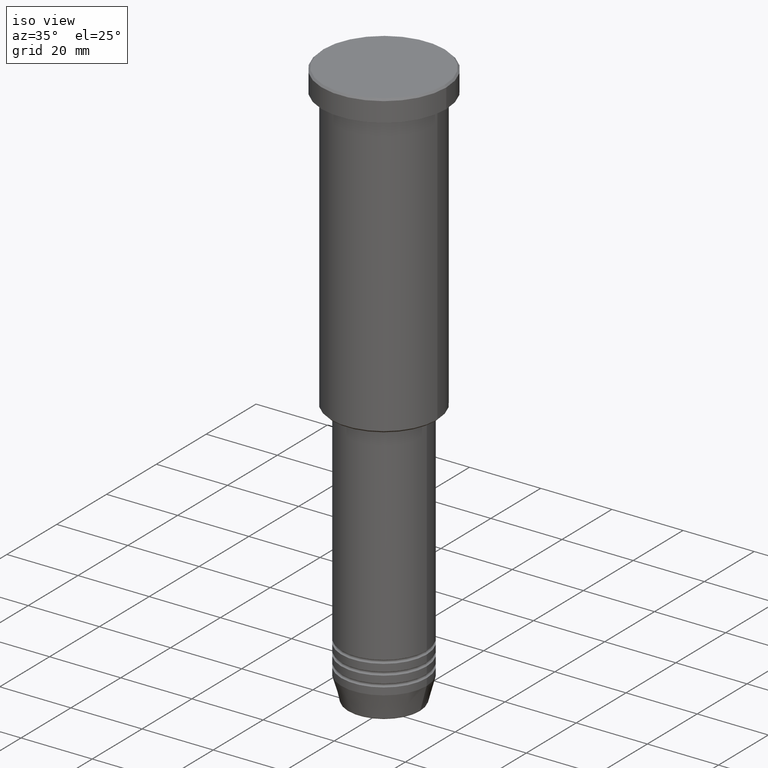
[diagram: clean part render]
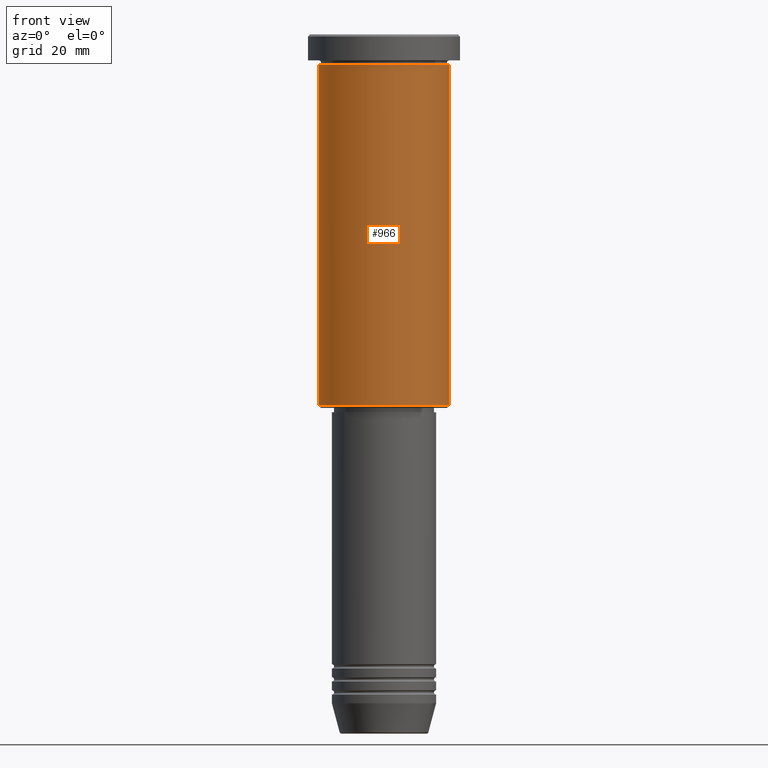
[diagram: tour spotlight — one face highlighted and labeled with its STEP entity id]
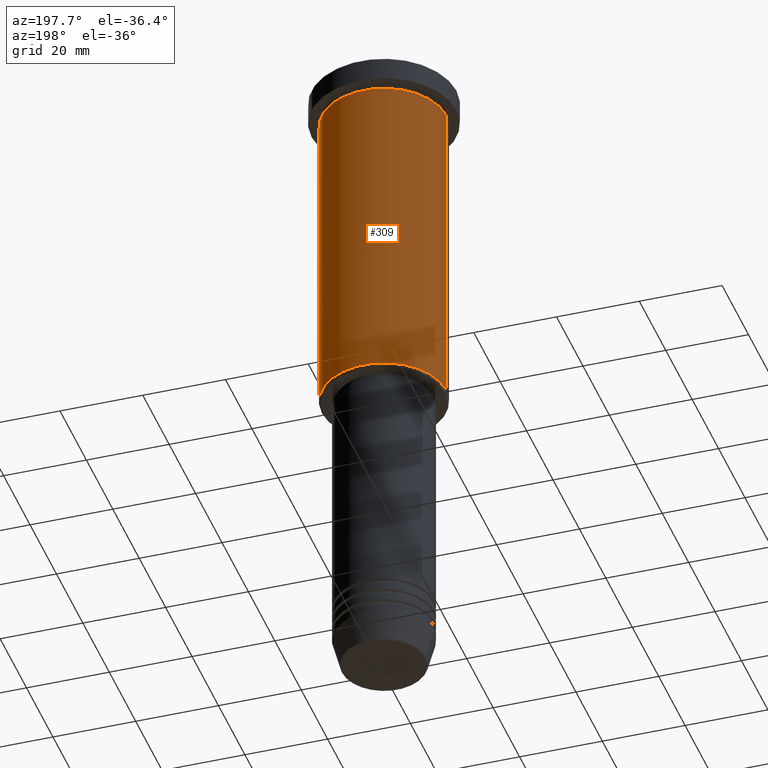
[diagram: tour spotlight — one face highlighted and labeled with its STEP entity id]
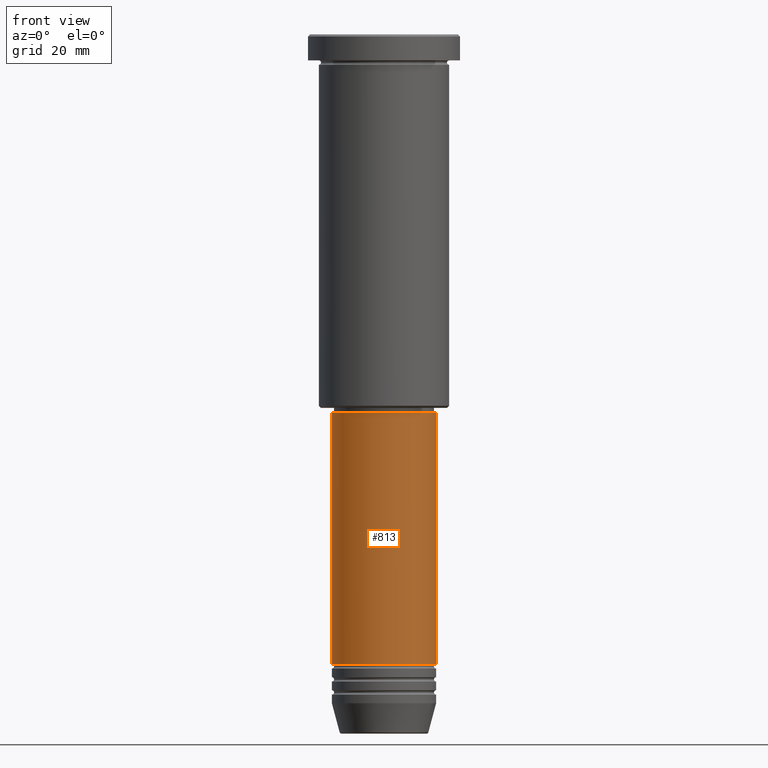
[diagram: tour spotlight — one face highlighted and labeled with its STEP entity id]
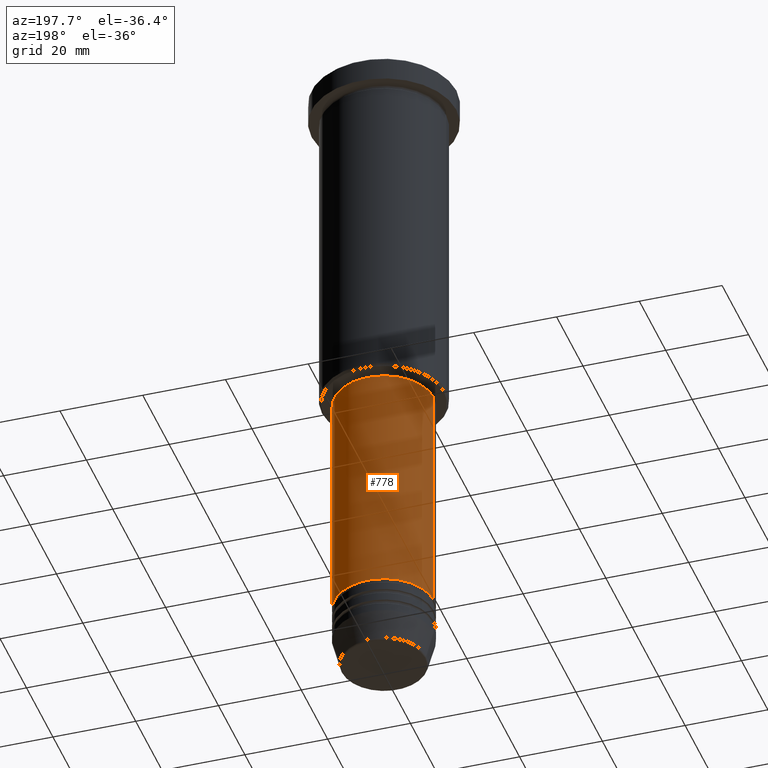
[diagram: tour spotlight — one face highlighted and labeled with its STEP entity id]
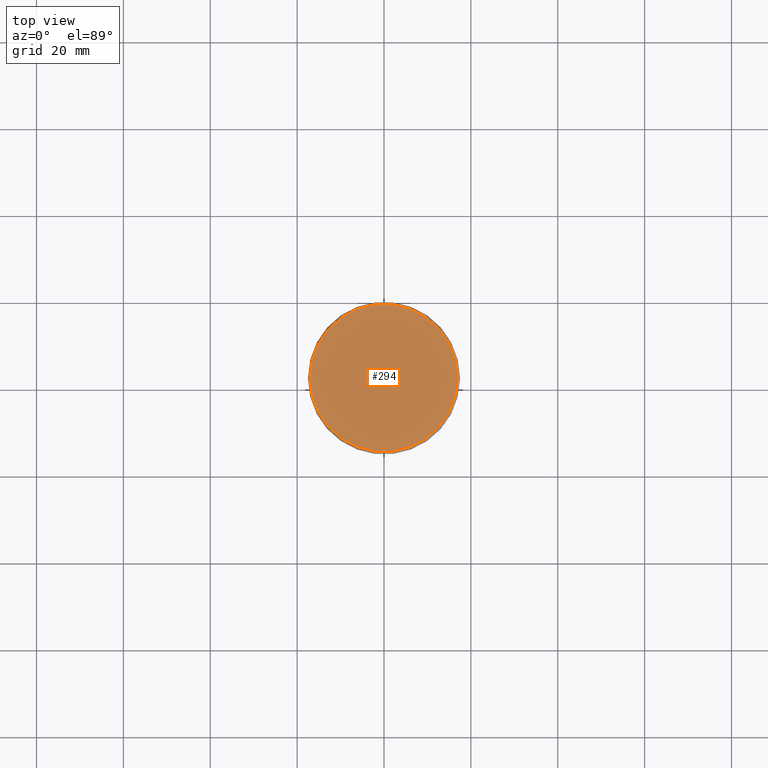
[diagram: tour spotlight — one face highlighted and labeled with its STEP entity id]
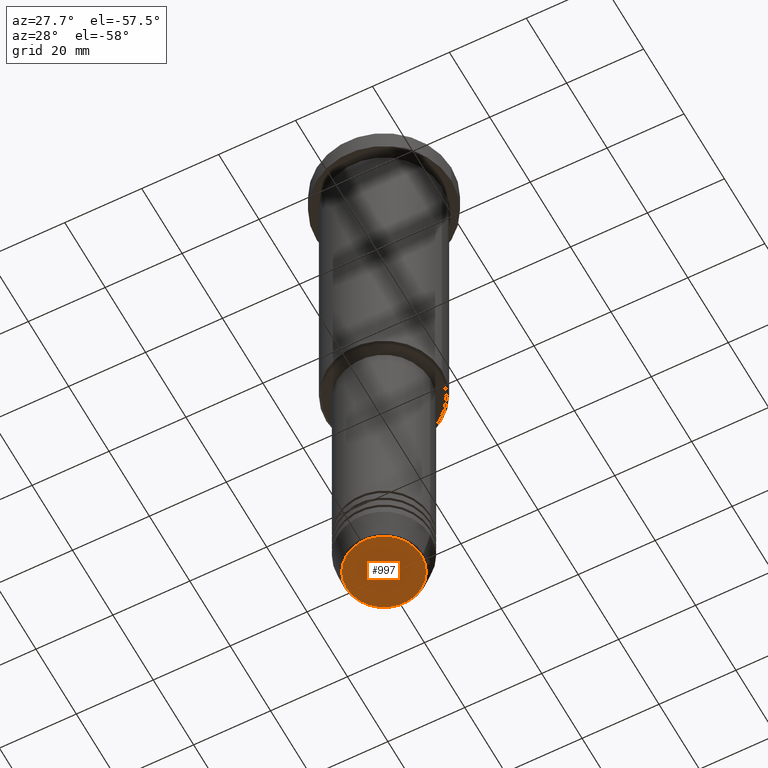
[diagram: tour spotlight — one face highlighted and labeled with its STEP entity id]
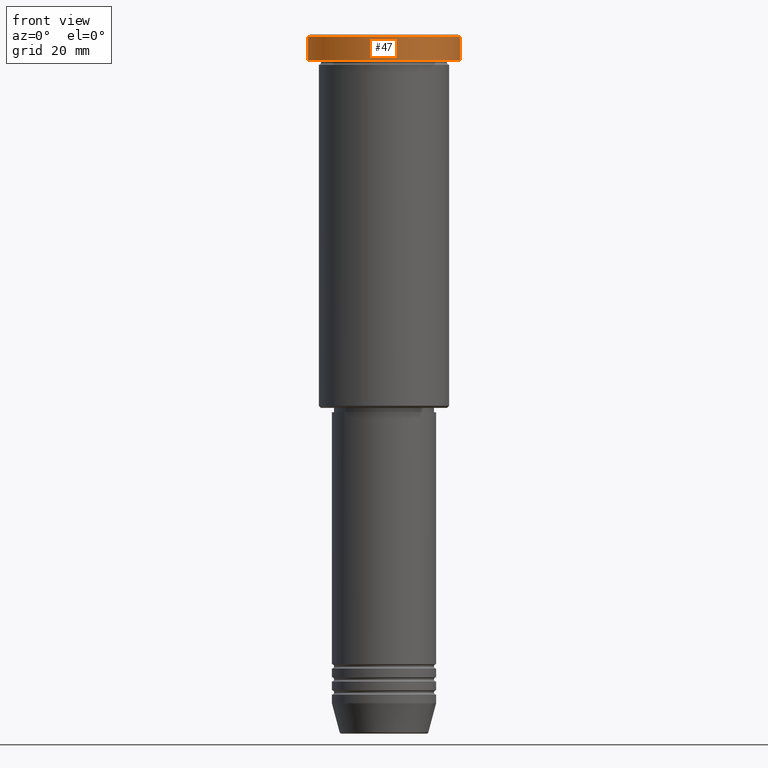
[diagram: tour spotlight — one face highlighted and labeled with its STEP entity id]
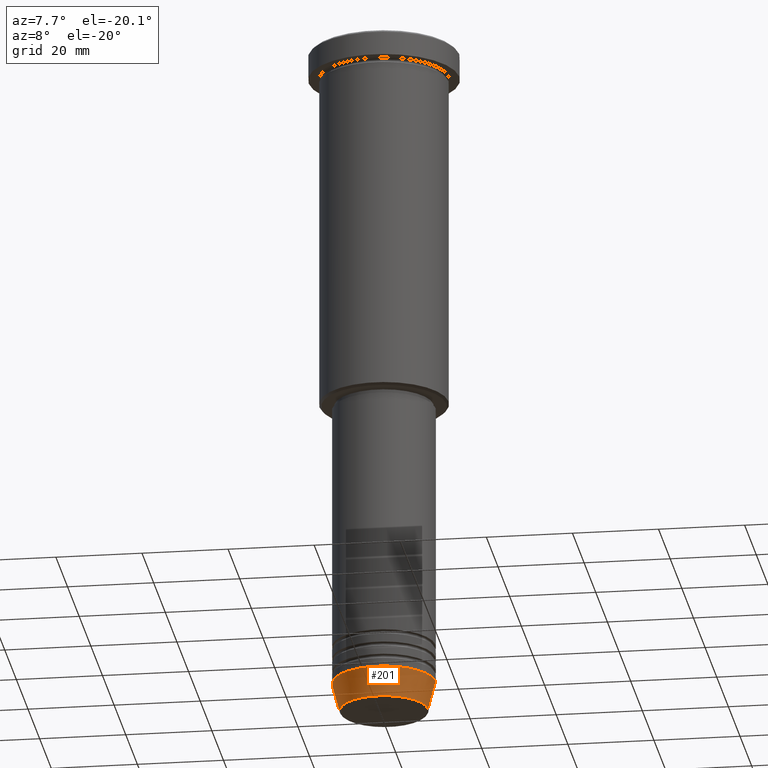
[diagram: tour spotlight — one face highlighted and labeled with its STEP entity id]
A machine part: a face-by-face anatomy tour. The part has 43 B-rep faces; the first image is the clean iso view, then the 8 largest visible faces are spotlighted one at a time (largest first), each with its STEP entity span.

Face 1 — front view, entity #966. In plain terms, the highlighted cylindrical surface (partial cylindrical patch) has radius 15 mm, axis along (-0, -0, 1).
Definition (entity closure, byte-faithful):
#3 = CIRCLE ( 'NONE', #447, 15.00000000000000000 ) ;
#21 = FACE_OUTER_BOUND ( 'NONE', #96, .T. ) ;
#22 = VERTEX_POINT ( 'NONE', #634 ) ;
#96 = EDGE_LOOP ( 'NONE', ( #480, #165, #759, #313 ) ) ;
#142 = DIRECTION ( 'NONE',  ( -0.000000000000000000, -0.000000000000000000, 1.000000000000000000 ) ) ;
#165 = ORIENTED_EDGE ( 'NONE', *, *, #596, .T. ) ;
#305 = DIRECTION ( 'NONE',  ( -0.000000000000000000, -0.000000000000000000, 1.000000000000000000 ) ) ;
#313 = ORIENTED_EDGE ( 'NONE', *, *, #555, .F. ) ;
#335 = CARTESIAN_POINT ( 'NONE',  ( -15.00000000000000000, 1.836970198721029589E-15, -85.49999999999998579 ) ) ;
#372 = DIRECTION ( 'NONE',  ( -0.000000000000000000, -0.000000000000000000, 1.000000000000000000 ) ) ;
#421 = LINE ( 'NONE', #1125, #1148 ) ;
#447 = AXIS2_PLACEMENT_3D ( 'NONE', #538, #458, #1161 ) ;
#458 = DIRECTION ( 'NONE',  ( -0.000000000000000000, -0.000000000000000000, 1.000000000000000000 ) ) ;
#463 = CARTESIAN_POINT ( 'NONE',  ( 15.00000000000000000, 0.000000000000000000, -85.49999999999998579 ) ) ;
#480 = ORIENTED_EDGE ( 'NONE', *, *, #1006, .F. ) ;
#515 = CARTESIAN_POINT ( 'NONE',  ( 0.000000000000000000, 0.000000000000000000, -85.49999999999998579 ) ) ;
#517 = EDGE_CURVE ( 'NONE', #804, #22, #1048, .T. ) ;
#538 = CARTESIAN_POINT ( 'NONE',  ( 0.000000000000000000, 0.000000000000000000, -6.999999999999995559 ) ) ;
#541 = VECTOR ( 'NONE', #372, 1000.000000000000000 ) ;
#542 = CARTESIAN_POINT ( 'NONE',  ( -15.00000000000000000, 1.836970198721029589E-15, -6.999999999999995559 ) ) ;
#555 = EDGE_CURVE ( 'NONE', #839, #22, #3, .T. ) ;
#596 = EDGE_CURVE ( 'NONE', #1097, #804, #1166, .T. ) ;
#634 = CARTESIAN_POINT ( 'NONE',  ( 15.00000000000000000, 0.000000000000000000, -6.999999999999995559 ) ) ;
#641 = CARTESIAN_POINT ( 'NONE',  ( 0.000000000000000000, 0.000000000000000000, 0.000000000000000000 ) ) ;
#759 = ORIENTED_EDGE ( 'NONE', *, *, #517, .T. ) ;
#804 = VERTEX_POINT ( 'NONE', #463 ) ;
#828 = CYLINDRICAL_SURFACE ( 'NONE', #1076, 15.00000000000000000 ) ;
#839 = VERTEX_POINT ( 'NONE', #542 ) ;
#847 = DIRECTION ( 'NONE',  ( 1.000000000000000000, 0.000000000000000000, 0.000000000000000000 ) ) ;
#911 = CARTESIAN_POINT ( 'NONE',  ( 15.00000000000000000, 0.000000000000000000, 0.000000000000000000 ) ) ;
#966 = ADVANCED_FACE ( 'NONE', ( #21 ), #828, .T. ) ;
#983 = AXIS2_PLACEMENT_3D ( 'NONE', #515, #1033, #1128 ) ;
#1006 = EDGE_CURVE ( 'NONE', #1097, #839, #421, .T. ) ;
#1033 = DIRECTION ( 'NONE',  ( -0.000000000000000000, -0.000000000000000000, 1.000000000000000000 ) ) ;
#1048 = LINE ( 'NONE', #911, #541 ) ;
#1076 = AXIS2_PLACEMENT_3D ( 'NONE', #641, #305, #847 ) ;
#1097 = VERTEX_POINT ( 'NONE', #335 ) ;
#1125 = CARTESIAN_POINT ( 'NONE',  ( -15.00000000000000000, 1.836970198721029589E-15, 0.000000000000000000 ) ) ;
#1128 = DIRECTION ( 'NONE',  ( -1.000000000000000000, 0.000000000000000000, 0.000000000000000000 ) ) ;
#1148 = VECTOR ( 'NONE', #142, 1000.000000000000000 ) ;
#1161 = DIRECTION ( 'NONE',  ( 1.000000000000000000, 0.000000000000000000, 0.000000000000000000 ) ) ;
#1166 = CIRCLE ( 'NONE', #983, 15.00000000000000000 ) ;

Face 2 — auxiliary view, entity #309. In plain terms, the highlighted cylindrical surface (partial cylindrical patch) has radius 15 mm, axis along (-0, -0, 1).
Definition (entity closure, byte-faithful):
#9 = ORIENTED_EDGE ( 'NONE', *, *, #416, .F. ) ;
#22 = VERTEX_POINT ( 'NONE', #634 ) ;
#142 = DIRECTION ( 'NONE',  ( -0.000000000000000000, -0.000000000000000000, 1.000000000000000000 ) ) ;
#172 = DIRECTION ( 'NONE',  ( -0.000000000000000000, -0.000000000000000000, 1.000000000000000000 ) ) ;
#309 = ADVANCED_FACE ( 'NONE', ( #1075 ), #624, .T. ) ;
#335 = CARTESIAN_POINT ( 'NONE',  ( -15.00000000000000000, 1.836970198721029589E-15, -85.49999999999998579 ) ) ;
#354 = CARTESIAN_POINT ( 'NONE',  ( 0.000000000000000000, 0.000000000000000000, 0.000000000000000000 ) ) ;
#372 = DIRECTION ( 'NONE',  ( -0.000000000000000000, -0.000000000000000000, 1.000000000000000000 ) ) ;
#373 = DIRECTION ( 'NONE',  ( 1.000000000000000000, 0.000000000000000000, 0.000000000000000000 ) ) ;
#416 = EDGE_CURVE ( 'NONE', #22, #839, #559, .T. ) ;
#421 = LINE ( 'NONE', #1125, #1148 ) ;
#433 = EDGE_CURVE ( 'NONE', #804, #1097, #871, .T. ) ;
#450 = ORIENTED_EDGE ( 'NONE', *, *, #517, .F. ) ;
#463 = CARTESIAN_POINT ( 'NONE',  ( 15.00000000000000000, 0.000000000000000000, -85.49999999999998579 ) ) ;
#495 = ORIENTED_EDGE ( 'NONE', *, *, #433, .T. ) ;
#517 = EDGE_CURVE ( 'NONE', #804, #22, #1048, .T. ) ;
#519 = DIRECTION ( 'NONE',  ( -0.000000000000000000, -0.000000000000000000, 1.000000000000000000 ) ) ;
#541 = VECTOR ( 'NONE', #372, 1000.000000000000000 ) ;
#542 = CARTESIAN_POINT ( 'NONE',  ( -15.00000000000000000, 1.836970198721029589E-15, -6.999999999999995559 ) ) ;
#556 = ORIENTED_EDGE ( 'NONE', *, *, #1006, .T. ) ;
#559 = CIRCLE ( 'NONE', #1017, 15.00000000000000000 ) ;
#624 = CYLINDRICAL_SURFACE ( 'NONE', #1089, 15.00000000000000000 ) ;
#634 = CARTESIAN_POINT ( 'NONE',  ( 15.00000000000000000, 0.000000000000000000, -6.999999999999995559 ) ) ;
#798 = AXIS2_PLACEMENT_3D ( 'NONE', #1105, #172, #1007 ) ;
#804 = VERTEX_POINT ( 'NONE', #463 ) ;
#839 = VERTEX_POINT ( 'NONE', #542 ) ;
#871 = CIRCLE ( 'NONE', #798, 15.00000000000000000 ) ;
#911 = CARTESIAN_POINT ( 'NONE',  ( 15.00000000000000000, 0.000000000000000000, 0.000000000000000000 ) ) ;
#1006 = EDGE_CURVE ( 'NONE', #1097, #839, #421, .T. ) ;
#1007 = DIRECTION ( 'NONE',  ( -1.000000000000000000, 0.000000000000000000, 0.000000000000000000 ) ) ;
#1017 = AXIS2_PLACEMENT_3D ( 'NONE', #1134, #519, #1042 ) ;
#1038 = EDGE_LOOP ( 'NONE', ( #495, #556, #9, #450 ) ) ;
#1042 = DIRECTION ( 'NONE',  ( 1.000000000000000000, 0.000000000000000000, 0.000000000000000000 ) ) ;
#1048 = LINE ( 'NONE', #911, #541 ) ;
#1075 = FACE_OUTER_BOUND ( 'NONE', #1038, .T. ) ;
#1089 = AXIS2_PLACEMENT_3D ( 'NONE', #354, #1168, #373 ) ;
#1097 = VERTEX_POINT ( 'NONE', #335 ) ;
#1105 = CARTESIAN_POINT ( 'NONE',  ( 0.000000000000000000, 0.000000000000000000, -85.49999999999998579 ) ) ;
#1125 = CARTESIAN_POINT ( 'NONE',  ( -15.00000000000000000, 1.836970198721029589E-15, 0.000000000000000000 ) ) ;
#1134 = CARTESIAN_POINT ( 'NONE',  ( 0.000000000000000000, 0.000000000000000000, -6.999999999999995559 ) ) ;
#1148 = VECTOR ( 'NONE', #142, 1000.000000000000000 ) ;
#1168 = DIRECTION ( 'NONE',  ( -0.000000000000000000, -0.000000000000000000, 1.000000000000000000 ) ) ;

Face 3 — front view, entity #813. In plain terms, the highlighted cylindrical surface (partial cylindrical patch) has radius 12 mm, axis along (-0, -0, 1).
Definition (entity closure, byte-faithful):
#28 = AXIS2_PLACEMENT_3D ( 'NONE', #101, #937, #756 ) ;
#41 = EDGE_LOOP ( 'NONE', ( #972, #474, #882, #456 ) ) ;
#86 = DIRECTION ( 'NONE',  ( -0.000000000000000000, -0.000000000000000000, 1.000000000000000000 ) ) ;
#90 = CIRCLE ( 'NONE', #1071, 12.00000000000000000 ) ;
#101 = CARTESIAN_POINT ( 'NONE',  ( 0.000000000000000000, 0.000000000000000000, -144.9999999999999716 ) ) ;
#222 = DIRECTION ( 'NONE',  ( 1.000000000000000000, 0.000000000000000000, 0.000000000000000000 ) ) ;
#271 = CARTESIAN_POINT ( 'NONE',  ( 0.000000000000000000, 0.000000000000000000, 0.000000000000000000 ) ) ;
#332 = VERTEX_POINT ( 'NONE', #1080 ) ;
#379 = EDGE_CURVE ( 'NONE', #332, #946, #889, .T. ) ;
#390 = CARTESIAN_POINT ( 'NONE',  ( -12.00000000000000000, 1.469576158976823947E-15, -87.00000000000000000 ) ) ;
#412 = CARTESIAN_POINT ( 'NONE',  ( 0.000000000000000000, 0.000000000000000000, -87.00000000000000000 ) ) ;
#456 = ORIENTED_EDGE ( 'NONE', *, *, #486, .F. ) ;
#474 = ORIENTED_EDGE ( 'NONE', *, *, #379, .T. ) ;
#486 = EDGE_CURVE ( 'NONE', #940, #1159, #90, .T. ) ;
#536 = LINE ( 'NONE', #976, #1113 ) ;
#557 = CARTESIAN_POINT ( 'NONE',  ( 12.00000000000000000, 0.000000000000000000, 0.000000000000000000 ) ) ;
#606 = DIRECTION ( 'NONE',  ( -0.000000000000000000, -0.000000000000000000, 1.000000000000000000 ) ) ;
#654 = DIRECTION ( 'NONE',  ( -0.000000000000000000, -0.000000000000000000, 1.000000000000000000 ) ) ;
#735 = CARTESIAN_POINT ( 'NONE',  ( 12.00000000000000000, 0.000000000000000000, -144.9999999999999716 ) ) ;
#756 = DIRECTION ( 'NONE',  ( 1.000000000000000000, 0.000000000000000000, 0.000000000000000000 ) ) ;
#757 = LINE ( 'NONE', #557, #1131 ) ;
#761 = AXIS2_PLACEMENT_3D ( 'NONE', #271, #86, #1172 ) ;
#793 = CARTESIAN_POINT ( 'NONE',  ( 12.00000000000000000, 0.000000000000000000, -87.00000000000000000 ) ) ;
#795 = DIRECTION ( 'NONE',  ( -0.000000000000000000, -0.000000000000000000, 1.000000000000000000 ) ) ;
#808 = EDGE_CURVE ( 'NONE', #332, #940, #536, .T. ) ;
#813 = ADVANCED_FACE ( 'NONE', ( #1064 ), #905, .T. ) ;
#863 = EDGE_CURVE ( 'NONE', #946, #1159, #757, .T. ) ;
#882 = ORIENTED_EDGE ( 'NONE', *, *, #863, .T. ) ;
#889 = CIRCLE ( 'NONE', #28, 12.00000000000000000 ) ;
#905 = CYLINDRICAL_SURFACE ( 'NONE', #761, 12.00000000000000000 ) ;
#937 = DIRECTION ( 'NONE',  ( -0.000000000000000000, -0.000000000000000000, 1.000000000000000000 ) ) ;
#940 = VERTEX_POINT ( 'NONE', #390 ) ;
#946 = VERTEX_POINT ( 'NONE', #735 ) ;
#972 = ORIENTED_EDGE ( 'NONE', *, *, #808, .F. ) ;
#976 = CARTESIAN_POINT ( 'NONE',  ( -12.00000000000000000, 1.469576158976823947E-15, 0.000000000000000000 ) ) ;
#1064 = FACE_OUTER_BOUND ( 'NONE', #41, .T. ) ;
#1071 = AXIS2_PLACEMENT_3D ( 'NONE', #412, #606, #222 ) ;
#1080 = CARTESIAN_POINT ( 'NONE',  ( -12.00000000000000000, 1.469576158976823947E-15, -144.9999999999999716 ) ) ;
#1113 = VECTOR ( 'NONE', #795, 1000.000000000000000 ) ;
#1131 = VECTOR ( 'NONE', #654, 1000.000000000000000 ) ;
#1159 = VERTEX_POINT ( 'NONE', #793 ) ;
#1172 = DIRECTION ( 'NONE',  ( 1.000000000000000000, 0.000000000000000000, 0.000000000000000000 ) ) ;

Face 4 — auxiliary view, entity #778. In plain terms, the highlighted cylindrical surface (partial cylindrical patch) has radius 12 mm, axis along (-0, -0, 1).
Definition (entity closure, byte-faithful):
#56 = EDGE_CURVE ( 'NONE', #946, #332, #518, .T. ) ;
#70 = DIRECTION ( 'NONE',  ( 1.000000000000000000, 0.000000000000000000, 0.000000000000000000 ) ) ;
#150 = FACE_OUTER_BOUND ( 'NONE', #420, .T. ) ;
#164 = AXIS2_PLACEMENT_3D ( 'NONE', #188, #482, #838 ) ;
#188 = CARTESIAN_POINT ( 'NONE',  ( 0.000000000000000000, 0.000000000000000000, -144.9999999999999716 ) ) ;
#252 = DIRECTION ( 'NONE',  ( -0.000000000000000000, -0.000000000000000000, 1.000000000000000000 ) ) ;
#332 = VERTEX_POINT ( 'NONE', #1080 ) ;
#378 = CARTESIAN_POINT ( 'NONE',  ( 0.000000000000000000, 0.000000000000000000, -87.00000000000000000 ) ) ;
#390 = CARTESIAN_POINT ( 'NONE',  ( -12.00000000000000000, 1.469576158976823947E-15, -87.00000000000000000 ) ) ;
#420 = EDGE_LOOP ( 'NONE', ( #589, #960, #924, #487 ) ) ;
#451 = AXIS2_PLACEMENT_3D ( 'NONE', #812, #252, #70 ) ;
#460 = CYLINDRICAL_SURFACE ( 'NONE', #451, 12.00000000000000000 ) ;
#465 = CIRCLE ( 'NONE', #1111, 12.00000000000000000 ) ;
#478 = EDGE_CURVE ( 'NONE', #1159, #940, #465, .T. ) ;
#482 = DIRECTION ( 'NONE',  ( -0.000000000000000000, -0.000000000000000000, 1.000000000000000000 ) ) ;
#487 = ORIENTED_EDGE ( 'NONE', *, *, #863, .F. ) ;
#518 = CIRCLE ( 'NONE', #164, 12.00000000000000000 ) ;
#536 = LINE ( 'NONE', #976, #1113 ) ;
#557 = CARTESIAN_POINT ( 'NONE',  ( 12.00000000000000000, 0.000000000000000000, 0.000000000000000000 ) ) ;
#589 = ORIENTED_EDGE ( 'NONE', *, *, #56, .T. ) ;
#652 = DIRECTION ( 'NONE',  ( 1.000000000000000000, 0.000000000000000000, 0.000000000000000000 ) ) ;
#654 = DIRECTION ( 'NONE',  ( -0.000000000000000000, -0.000000000000000000, 1.000000000000000000 ) ) ;
#735 = CARTESIAN_POINT ( 'NONE',  ( 12.00000000000000000, 0.000000000000000000, -144.9999999999999716 ) ) ;
#757 = LINE ( 'NONE', #557, #1131 ) ;
#778 = ADVANCED_FACE ( 'NONE', ( #150 ), #460, .T. ) ;
#793 = CARTESIAN_POINT ( 'NONE',  ( 12.00000000000000000, 0.000000000000000000, -87.00000000000000000 ) ) ;
#795 = DIRECTION ( 'NONE',  ( -0.000000000000000000, -0.000000000000000000, 1.000000000000000000 ) ) ;
#808 = EDGE_CURVE ( 'NONE', #332, #940, #536, .T. ) ;
#812 = CARTESIAN_POINT ( 'NONE',  ( 0.000000000000000000, 0.000000000000000000, 0.000000000000000000 ) ) ;
#825 = DIRECTION ( 'NONE',  ( -0.000000000000000000, -0.000000000000000000, 1.000000000000000000 ) ) ;
#838 = DIRECTION ( 'NONE',  ( 1.000000000000000000, 0.000000000000000000, 0.000000000000000000 ) ) ;
#863 = EDGE_CURVE ( 'NONE', #946, #1159, #757, .T. ) ;
#924 = ORIENTED_EDGE ( 'NONE', *, *, #478, .F. ) ;
#940 = VERTEX_POINT ( 'NONE', #390 ) ;
#946 = VERTEX_POINT ( 'NONE', #735 ) ;
#960 = ORIENTED_EDGE ( 'NONE', *, *, #808, .T. ) ;
#976 = CARTESIAN_POINT ( 'NONE',  ( -12.00000000000000000, 1.469576158976823947E-15, 0.000000000000000000 ) ) ;
#1080 = CARTESIAN_POINT ( 'NONE',  ( -12.00000000000000000, 1.469576158976823947E-15, -144.9999999999999716 ) ) ;
#1111 = AXIS2_PLACEMENT_3D ( 'NONE', #378, #825, #652 ) ;
#1113 = VECTOR ( 'NONE', #795, 1000.000000000000000 ) ;
#1131 = VECTOR ( 'NONE', #654, 1000.000000000000000 ) ;
#1159 = VERTEX_POINT ( 'NONE', #793 ) ;

Face 5 — top view, entity #294. In plain terms, the highlighted planar face has unit normal (0, -0, 1).
Definition (entity closure, byte-faithful):
#4 = CARTESIAN_POINT ( 'NONE',  ( 17.00000000000004263, 2.112515728529187222E-15, 0.000000000000000000 ) ) ;
#5 = CARTESIAN_POINT ( 'NONE',  ( 0.000000000000000000, 0.000000000000000000, 0.000000000000000000 ) ) ;
#81 = DIRECTION ( 'NONE',  ( 0.000000000000000000, -0.000000000000000000, 1.000000000000000000 ) ) ;
#110 = AXIS2_PLACEMENT_3D ( 'NONE', #5, #996, #484 ) ;
#126 = AXIS2_PLACEMENT_3D ( 'NONE', #722, #81, #814 ) ;
#131 = VERTEX_POINT ( 'NONE', #245 ) ;
#156 = VERTEX_POINT ( 'NONE', #4 ) ;
#169 = AXIS2_PLACEMENT_3D ( 'NONE', #661, #291, #491 ) ;
#171 = FACE_OUTER_BOUND ( 'NONE', #350, .T. ) ;
#245 = CARTESIAN_POINT ( 'NONE',  ( -17.00000000000004263, 0.000000000000000000, 0.000000000000000000 ) ) ;
#291 = DIRECTION ( 'NONE',  ( -0.000000000000000000, -0.000000000000000000, 1.000000000000000000 ) ) ;
#294 = ADVANCED_FACE ( 'NONE', ( #171 ), #978, .T. ) ;
#350 = EDGE_LOOP ( 'NONE', ( #702, #466 ) ) ;
#351 = CIRCLE ( 'NONE', #169, 17.00000000000004263 ) ;
#466 = ORIENTED_EDGE ( 'NONE', *, *, #935, .T. ) ;
#484 = DIRECTION ( 'NONE',  ( 1.000000000000000000, 0.000000000000000000, 0.000000000000000000 ) ) ;
#491 = DIRECTION ( 'NONE',  ( 1.000000000000000000, 0.000000000000000000, 0.000000000000000000 ) ) ;
#503 = CIRCLE ( 'NONE', #110, 17.00000000000004263 ) ;
#661 = CARTESIAN_POINT ( 'NONE',  ( 0.000000000000000000, 0.000000000000000000, 0.000000000000000000 ) ) ;
#702 = ORIENTED_EDGE ( 'NONE', *, *, #922, .T. ) ;
#722 = CARTESIAN_POINT ( 'NONE',  ( 0.000000000000000000, 0.000000000000000000, 0.000000000000000000 ) ) ;
#814 = DIRECTION ( 'NONE',  ( 1.000000000000000000, 0.000000000000000000, 0.000000000000000000 ) ) ;
#922 = EDGE_CURVE ( 'NONE', #131, #156, #351, .T. ) ;
#935 = EDGE_CURVE ( 'NONE', #156, #131, #503, .T. ) ;
#978 = PLANE ( 'NONE',  #126 ) ;
#996 = DIRECTION ( 'NONE',  ( -0.000000000000000000, -0.000000000000000000, 1.000000000000000000 ) ) ;

Face 6 — auxiliary view, entity #997. In plain terms, the highlighted planar face has unit normal (0, -0, 1).
Definition (entity closure, byte-faithful):
#38 = DIRECTION ( 'NONE',  ( 0.000000000000000000, 0.000000000000000000, -1.000000000000000000 ) ) ;
#44 = DIRECTION ( 'NONE',  ( 1.000000000000000000, 0.000000000000000000, 0.000000000000000000 ) ) ;
#67 = DIRECTION ( 'NONE',  ( 1.000000000000000000, 0.000000000000000000, 0.000000000000000000 ) ) ;
#92 = AXIS2_PLACEMENT_3D ( 'NONE', #1115, #38, #952 ) ;
#239 = CARTESIAN_POINT ( 'NONE',  ( 0.000000000000000000, 0.000000000000000000, -160.9999999999999716 ) ) ;
#311 = CIRCLE ( 'NONE', #92, 9.740692158992667160 ) ;
#327 = AXIS2_PLACEMENT_3D ( 'NONE', #239, #774, #44 ) ;
#357 = CARTESIAN_POINT ( 'NONE',  ( 0.000000000000000000, 0.000000000000000000, -160.9999999999999716 ) ) ;
#415 = PLANE ( 'NONE',  #327 ) ;
#496 = CARTESIAN_POINT ( 'NONE',  ( 9.740692158992667160, 0.000000000000000000, -160.9999999999999716 ) ) ;
#505 = CARTESIAN_POINT ( 'NONE',  ( -9.740692158992667160, 1.222463696683475393E-15, -160.9999999999999716 ) ) ;
#525 = ORIENTED_EDGE ( 'NONE', *, *, #1132, .T. ) ;
#565 = AXIS2_PLACEMENT_3D ( 'NONE', #357, #1062, #67 ) ;
#683 = VERTEX_POINT ( 'NONE', #505 ) ;
#774 = DIRECTION ( 'NONE',  ( 0.000000000000000000, -0.000000000000000000, 1.000000000000000000 ) ) ;
#933 = CIRCLE ( 'NONE', #565, 9.740692158992667160 ) ;
#952 = DIRECTION ( 'NONE',  ( 1.000000000000000000, 0.000000000000000000, 0.000000000000000000 ) ) ;
#997 = ADVANCED_FACE ( 'NONE', ( #1110 ), #415, .F. ) ;
#1012 = EDGE_CURVE ( 'NONE', #1018, #683, #311, .T. ) ;
#1018 = VERTEX_POINT ( 'NONE', #496 ) ;
#1062 = DIRECTION ( 'NONE',  ( 0.000000000000000000, 0.000000000000000000, -1.000000000000000000 ) ) ;
#1101 = ORIENTED_EDGE ( 'NONE', *, *, #1012, .T. ) ;
#1110 = FACE_OUTER_BOUND ( 'NONE', #1151, .T. ) ;
#1115 = CARTESIAN_POINT ( 'NONE',  ( 0.000000000000000000, 0.000000000000000000, -160.9999999999999716 ) ) ;
#1132 = EDGE_CURVE ( 'NONE', #683, #1018, #933, .T. ) ;
#1151 = EDGE_LOOP ( 'NONE', ( #1101, #525 ) ) ;

Face 7 — front view, entity #47. In plain terms, the highlighted cylindrical surface (partial cylindrical patch) has radius 17.5 mm, axis along (-0, -0, 1).
Definition (entity closure, byte-faithful):
#2 = AXIS2_PLACEMENT_3D ( 'NONE', #279, #10, #644 ) ;
#10 = DIRECTION ( 'NONE',  ( -0.000000000000000000, -0.000000000000000000, 1.000000000000000000 ) ) ;
#12 = LINE ( 'NONE', #193, #287 ) ;
#47 = ADVANCED_FACE ( 'NONE', ( #377 ), #901, .T. ) ;
#79 = VERTEX_POINT ( 'NONE', #398 ) ;
#106 = CIRCLE ( 'NONE', #777, 17.50000000000000000 ) ;
#111 = EDGE_CURVE ( 'NONE', #1065, #79, #106, .T. ) ;
#147 = CIRCLE ( 'NONE', #780, 17.50000000000000000 ) ;
#162 = DIRECTION ( 'NONE',  ( 0.000000000000000000, 0.000000000000000000, -1.000000000000000000 ) ) ;
#191 = CARTESIAN_POINT ( 'NONE',  ( 17.50000000000000000, 0.000000000000000000, -5.999999999999995559 ) ) ;
#193 = CARTESIAN_POINT ( 'NONE',  ( 17.50000000000000000, 0.000000000000000000, 0.000000000000000000 ) ) ;
#234 = CARTESIAN_POINT ( 'NONE',  ( -17.50000000000000000, 2.143131898507868248E-15, 0.000000000000000000 ) ) ;
#257 = DIRECTION ( 'NONE',  ( 1.000000000000000000, 0.000000000000000000, 0.000000000000000000 ) ) ;
#266 = ORIENTED_EDGE ( 'NONE', *, *, #111, .T. ) ;
#279 = CARTESIAN_POINT ( 'NONE',  ( 0.000000000000000000, 0.000000000000000000, 0.000000000000000000 ) ) ;
#284 = EDGE_CURVE ( 'NONE', #492, #79, #898, .T. ) ;
#287 = VECTOR ( 'NONE', #302, 1000.000000000000000 ) ;
#299 = CARTESIAN_POINT ( 'NONE',  ( 0.000000000000000000, 0.000000000000000000, -5.999999999999995559 ) ) ;
#302 = DIRECTION ( 'NONE',  ( -0.000000000000000000, -0.000000000000000000, 1.000000000000000000 ) ) ;
#377 = FACE_OUTER_BOUND ( 'NONE', #981, .T. ) ;
#398 = CARTESIAN_POINT ( 'NONE',  ( -17.50000000000000000, 2.143131898507868248E-15, -0.4999999999999725775 ) ) ;
#475 = EDGE_CURVE ( 'NONE', #948, #1065, #12, .T. ) ;
#492 = VERTEX_POINT ( 'NONE', #961 ) ;
#602 = CARTESIAN_POINT ( 'NONE',  ( 17.50000000000000000, 0.000000000000000000, -0.4999999999999725775 ) ) ;
#644 = DIRECTION ( 'NONE',  ( 1.000000000000000000, 0.000000000000000000, 0.000000000000000000 ) ) ;
#647 = VECTOR ( 'NONE', #715, 1000.000000000000000 ) ;
#715 = DIRECTION ( 'NONE',  ( -0.000000000000000000, -0.000000000000000000, 1.000000000000000000 ) ) ;
#777 = AXIS2_PLACEMENT_3D ( 'NONE', #790, #162, #257 ) ;
#780 = AXIS2_PLACEMENT_3D ( 'NONE', #299, #842, #1106 ) ;
#790 = CARTESIAN_POINT ( 'NONE',  ( 0.000000000000000000, 0.000000000000000000, -0.4999999999999725775 ) ) ;
#842 = DIRECTION ( 'NONE',  ( -0.000000000000000000, -0.000000000000000000, 1.000000000000000000 ) ) ;
#850 = ORIENTED_EDGE ( 'NONE', *, *, #475, .T. ) ;
#898 = LINE ( 'NONE', #234, #647 ) ;
#901 = CYLINDRICAL_SURFACE ( 'NONE', #2, 17.50000000000000000 ) ;
#948 = VERTEX_POINT ( 'NONE', #191 ) ;
#956 = EDGE_CURVE ( 'NONE', #492, #948, #147, .T. ) ;
#961 = CARTESIAN_POINT ( 'NONE',  ( -17.50000000000000000, 2.143131898507868248E-15, -5.999999999999995559 ) ) ;
#981 = EDGE_LOOP ( 'NONE', ( #998, #1164, #850, #266 ) ) ;
#998 = ORIENTED_EDGE ( 'NONE', *, *, #284, .F. ) ;
#1065 = VERTEX_POINT ( 'NONE', #602 ) ;
#1106 = DIRECTION ( 'NONE',  ( 1.000000000000000000, 0.000000000000000000, 0.000000000000000000 ) ) ;
#1164 = ORIENTED_EDGE ( 'NONE', *, *, #956, .T. ) ;

Face 8 — auxiliary view, entity #201. In plain terms, the highlighted conical surface has half-angle 15 deg.
Definition (entity closure, byte-faithful):
#11 = ORIENTED_EDGE ( 'NONE', *, *, #827, .T. ) ;
#53 = CARTESIAN_POINT ( 'NONE',  ( -12.00000000000000000, 1.469576158976823947E-15, -154.0000000000000000 ) ) ;
#74 = VECTOR ( 'NONE', #1013, 1000.000000000000000 ) ;
#77 = EDGE_CURVE ( 'NONE', #705, #1041, #678, .T. ) ;
#83 = CARTESIAN_POINT ( 'NONE',  ( -10.22365507213719837, 1.360806402472383336E-15, -160.6294095225512422 ) ) ;
#148 = DIRECTION ( 'NONE',  ( -0.000000000000000000, -0.000000000000000000, 1.000000000000000000 ) ) ;
#201 = ADVANCED_FACE ( 'NONE', ( #1067 ), #346, .T. ) ;
#207 = CIRCLE ( 'NONE', #464, 12.00000000000000000 ) ;
#249 = EDGE_CURVE ( 'NONE', #676, #1041, #207, .T. ) ;
#250 = AXIS2_PLACEMENT_3D ( 'NONE', #374, #734, #803 ) ;
#260 = CARTESIAN_POINT ( 'NONE',  ( 0.000000000000000000, 0.000000000000000000, -154.0000000000000000 ) ) ;
#343 = VERTEX_POINT ( 'NONE', #83 ) ;
#346 = CONICAL_SURFACE ( 'NONE', #999, 12.00000000000000000, 0.2617993877991500740 ) ;
#365 = ORIENTED_EDGE ( 'NONE', *, *, #930, .F. ) ;
#374 = CARTESIAN_POINT ( 'NONE',  ( 0.000000000000000000, 0.000000000000000000, -160.6294095225512422 ) ) ;
#380 = CARTESIAN_POINT ( 'NONE',  ( -12.00000000000000000, 1.469576158976823947E-15, -154.0000000000000000 ) ) ;
#436 = CARTESIAN_POINT ( 'NONE',  ( 10.22365507213719660, 0.000000000000000000, -160.6294095225512422 ) ) ;
#464 = AXIS2_PLACEMENT_3D ( 'NONE', #611, #148, #657 ) ;
#488 = DIRECTION ( 'NONE',  ( 0.2588190451025213501, 0.000000000000000000, 0.9659258262890680902 ) ) ;
#500 = ORIENTED_EDGE ( 'NONE', *, *, #249, .F. ) ;
#580 = CARTESIAN_POINT ( 'NONE',  ( 12.00000000000000000, 0.000000000000000000, -154.0000000000000000 ) ) ;
#610 = EDGE_LOOP ( 'NONE', ( #365, #11, #965, #500 ) ) ;
#611 = CARTESIAN_POINT ( 'NONE',  ( 0.000000000000000000, 0.000000000000000000, -154.0000000000000000 ) ) ;
#657 = DIRECTION ( 'NONE',  ( 1.000000000000000000, 0.000000000000000000, 0.000000000000000000 ) ) ;
#676 = VERTEX_POINT ( 'NONE', #53 ) ;
#678 = LINE ( 'NONE', #580, #687 ) ;
#687 = VECTOR ( 'NONE', #488, 1000.000000000000000 ) ;
#697 = DIRECTION ( 'NONE',  ( -0.000000000000000000, -0.000000000000000000, 1.000000000000000000 ) ) ;
#705 = VERTEX_POINT ( 'NONE', #436 ) ;
#734 = DIRECTION ( 'NONE',  ( -0.000000000000000000, -0.000000000000000000, 1.000000000000000000 ) ) ;
#803 = DIRECTION ( 'NONE',  ( 1.000000000000000000, 0.000000000000000000, 0.000000000000000000 ) ) ;
#827 = EDGE_CURVE ( 'NONE', #343, #705, #856, .T. ) ;
#856 = CIRCLE ( 'NONE', #250, 10.22365507213719660 ) ;
#866 = DIRECTION ( 'NONE',  ( 1.000000000000000000, 0.000000000000000000, 0.000000000000000000 ) ) ;
#930 = EDGE_CURVE ( 'NONE', #343, #676, #1183, .T. ) ;
#965 = ORIENTED_EDGE ( 'NONE', *, *, #77, .T. ) ;
#999 = AXIS2_PLACEMENT_3D ( 'NONE', #260, #697, #866 ) ;
#1013 = DIRECTION ( 'NONE',  ( -0.2588190451025213501, 3.169619151431772337E-17, 0.9659258262890680902 ) ) ;
#1023 = CARTESIAN_POINT ( 'NONE',  ( 12.00000000000000000, 0.000000000000000000, -154.0000000000000000 ) ) ;
#1041 = VERTEX_POINT ( 'NONE', #1023 ) ;
#1067 = FACE_OUTER_BOUND ( 'NONE', #610, .T. ) ;
#1183 = LINE ( 'NONE', #380, #74 ) ;